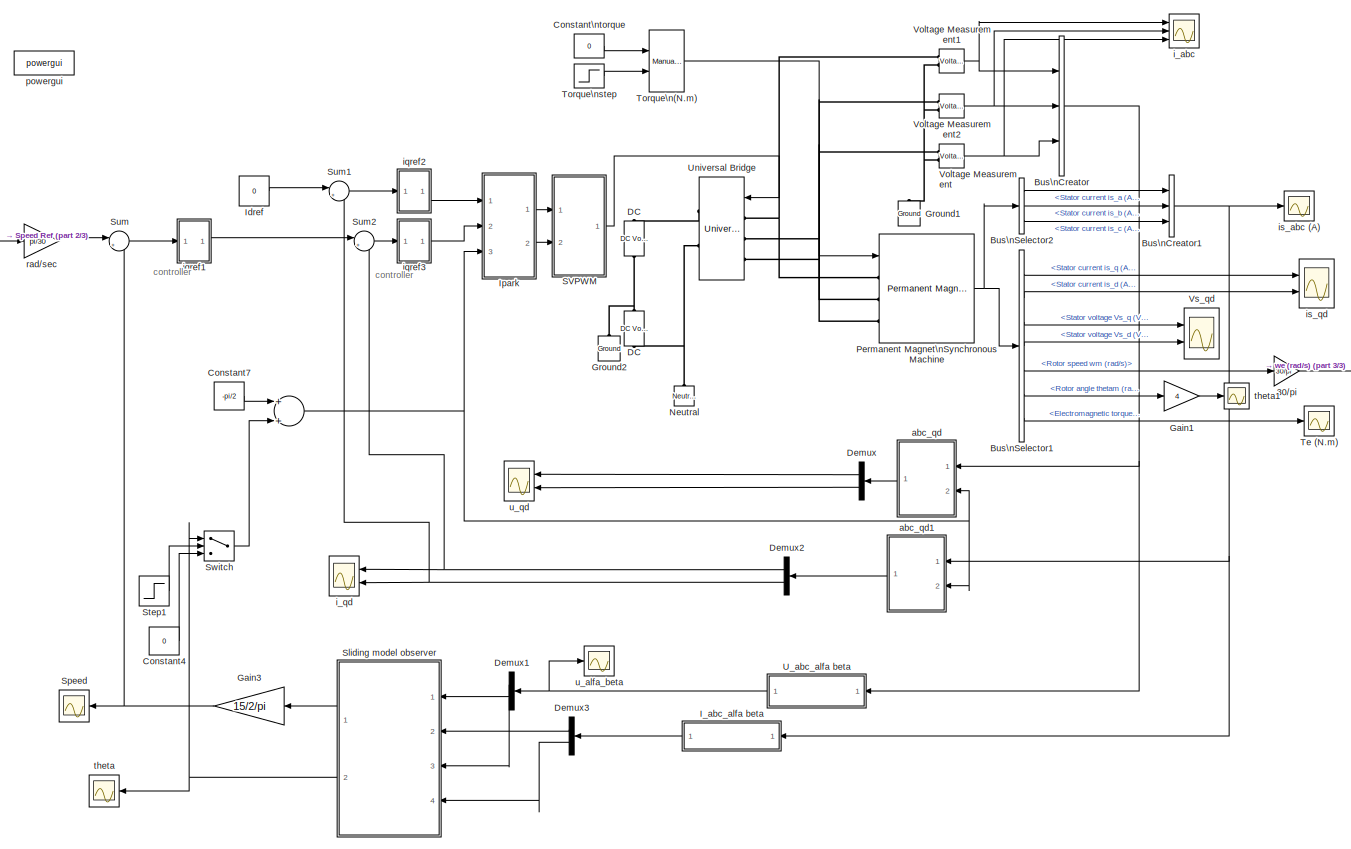
[diagram: root canvas - part 1/3, most of the canvas]
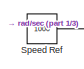
[diagram: root canvas - part 2/3, top left region]
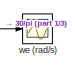
[diagram: root canvas - part 3/3, middle right region]
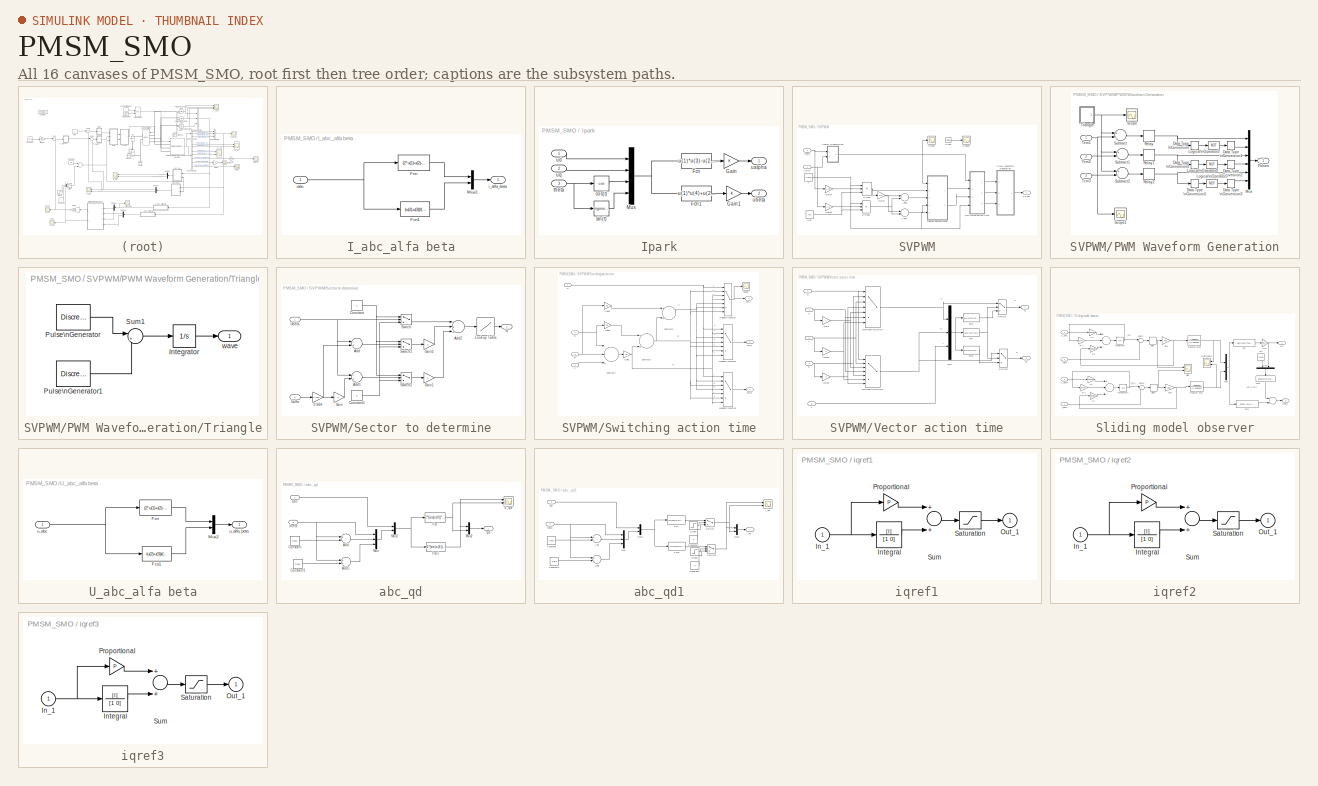
[diagram: thumbnail index - all 16 canvases of the model, root first then tree order]
MODEL PMSM_SMO
KIND model
BLOCK [Sum]   
  InputSameDT = off
  OutDataTypeStr = Inherit: Inherit via internal rule
  Ports = [2, 1]
  SID = 287
  SaturateOnIntegerOverflow = off
BLOCK [Gain] 30//pi
  Gain = 30/pi
  OutDataTypeStr = Inherit: Inherit via internal rule
  ParamDataTypeStr = Inherit: Inherit via internal rule
  SID = 1
  SaturateOnIntegerOverflow = off
BLOCK [BusCreator] Bus\nCreator
  DisplayOption = bar
  InheritFromInputs = on
  Inputs = 3
  Ports = [3, 1]
  SID = 184
BLOCK [BusCreator] Bus\nCreator1
  DisplayOption = bar
  InheritFromInputs = on
  Inputs = 3
  Ports = [3, 1]
  SID = 186
BLOCK [BusSelector] Bus\nSelector1
  OutputAsBus = off
  OutputSignals = Stator current is_q (A),Stator current is_d (A),Stator voltage Vs_q (V),Stator voltage Vs_d (V),Rotor speed wm (rad/s),Rotor angle thetam (rad),Electromagnetic torque Te (N*m)
  Ports = [1, 7]
  SID = 189
BLOCK [BusSelector] Bus\nSelector2
  OutputAsBus = off
  OutputSignals = Stator current is_a (A),Stator current is_b (A),Stator current is_c (A)
  Ports = [1, 3]
  SID = 5
BLOCK [Constant] Constant4
  SID = 281
  Value = 0
BLOCK [Constant] Constant7
  SID = 288
  Value = -pi/2
BLOCK [Constant] Constant\ntorque
  SID = 17
  Value = 0
BLOCK [Reference] DC  REF=powerlib/Electrical\nSources/DC Voltage Source
  Amplitude = 250
  FunctionWithSeparateData = off
  Measurements = None
  Ports = [0, 0, 0, 0, 0, 1, 1]
  RTWMemSecDataConstants = Inherit from model
  RTWMemSecDataInternal = Inherit from model
  RTWMemSecDataParameters = Inherit from model
  RTWMemSecFuncExecute = Inherit from model
  RTWMemSecFuncInitTerm = Inherit from model
  SID = 295
  ShowPortLabels = FromPortIcon
  SourceBlock = powerlib/Electrical\nSources/DC Voltage Source
  SourceProductBaseCode = PS
  SourceProductName = Simscape Electrical
  SourceType = DC Voltage Source
  SystemSampleTime = -1
BLOCK [Reference] DC   REF=powerlib/Electrical\nSources/DC Voltage Source
  Amplitude = 250
  FunctionWithSeparateData = off
  Measurements = None
  Ports = [0, 0, 0, 0, 0, 1, 1]
  RTWMemSecDataConstants = Inherit from model
  RTWMemSecDataInternal = Inherit from model
  RTWMemSecDataParameters = Inherit from model
  RTWMemSecFuncExecute = Inherit from model
  RTWMemSecFuncInitTerm = Inherit from model
  SID = 296
  ShowPortLabels = FromPortIcon
  SourceBlock = powerlib/Electrical\nSources/DC Voltage Source
  SourceProductBaseCode = PS
  SourceProductName = Simscape Electrical
  SourceType = DC Voltage Source
  SystemSampleTime = -1
BLOCK [Demux] Demux
  DisplayOption = bar
  Outputs = 2
  Ports = [1, 2]
  SID = 239
BLOCK [Demux] Demux1
  DisplayOption = bar
  Outputs = 2
  Ports = [1, 2]
  SID = 243
BLOCK [Demux] Demux2
  DisplayOption = bar
  Outputs = 2
  Ports = [1, 2]
  SID = 241
BLOCK [Demux] Demux3
  DisplayOption = bar
  Outputs = 2
  Ports = [1, 2]
  SID = 244
BLOCK [Gain] Gain1
  Gain = 4
  OutDataTypeStr = Inherit: Inherit via internal rule
  ParamDataTypeStr = Inherit: Inherit via internal rule
  SID = 300
  SaturateOnIntegerOverflow = off
BLOCK [Gain] Gain3
  Gain = 15/2/pi
  OutDataTypeStr = Inherit: Inherit via internal rule
  ParamDataTypeStr = Inherit: Inherit via internal rule
  SID = 282
  SaturateOnIntegerOverflow = off
BLOCK [Reference] Ground1  REF=powerlib/Elements/Ground
  LConnTagsString = a
  LeftPortType = p1
  PhysicalDomain = powersysdomain
  Ports = [0, 0, 0, 0, 0, 1]
  RightPortType = p1
  SID = 183
  SourceBlock = powerlib/Elements/Ground
  SourceProductBaseCode = PS
  SourceProductName = Simscape Electrical
  SourceType = Ground
  SubClassName = unknown
BLOCK [Reference] Ground2  REF=powerlib/Elements/Ground
  LConnTagsString = a
  LeftPortType = p1
  PhysicalDomain = powersysdomain
  Ports = [0, 0, 0, 0, 0, 1]
  RightPortType = p1
  SID = 297
  SourceBlock = powerlib/Elements/Ground
  SourceProductBaseCode = PS
  SourceProductName = Simscape Electrical
  SourceType = Ground
  SubClassName = unknown
BLOCK [SubSystem] I_abc_alfa beta
  Ports = [1, 1]
  RequestExecContextInheritance = off
  SID = 227
BLOCK [Fcn] I_abc_alfa beta/Fcn
  Expr = (2*u(1)-u(2)-u(3))/3
  SID = 229
BLOCK [Fcn] I_abc_alfa beta/Fcn1
  Expr = (u(2)-u(3))/(3^(1/2))
  SID = 230
BLOCK [Mux] I_abc_alfa beta/Mux2
  DisplayOption = bar
  Inputs = 2
  Ports = [2, 1]
  SID = 231
BLOCK [Outport] I_abc_alfa beta/i_alfa_beta
  IconDisplay = Port number
  SID = 232
BLOCK [Inport] I_abc_alfa beta/iabc
  IconDisplay = Port number
  SID = 228
BLOCK [Constant] Idref
  SID = 19
  Value = 0
BLOCK [SubSystem] Ipark
  Ports = [3, 2]
  RequestExecContextInheritance = off
  SID = 20
BLOCK [Fcn] Ipark/Fcn
  Expr = u(1)*u(3)-u(2)*u(4)
  SID = 24
BLOCK [Fcn] Ipark/Fcn1
  Expr = u(1)*u(4)+u(2)*u(3)
  SID = 25
BLOCK [Gain] Ipark/Gain
  OutDataTypeStr = Inherit: Inherit via internal rule
  ParamDataTypeStr = Inherit: Inherit via internal rule
  SID = 26
  SaturateOnIntegerOverflow = off
BLOCK [Gain] Ipark/Gain1
  OutDataTypeStr = Inherit: Inherit via internal rule
  ParamDataTypeStr = Inherit: Inherit via internal rule
  SID = 27
  SaturateOnIntegerOverflow = off
BLOCK [Mux] Ipark/Mux
  DisplayOption = bar
  Ports = [4, 1]
  SID = 28
BLOCK [Trigonometry] Ipark/cos(t)
  Operator = cos
  Ports = [1, 1]
  SID = 29
BLOCK [Trigonometry] Ipark/sin(t)
  Ports = [1, 1]
  SID = 30
BLOCK [Inport] Ipark/theta
  IconDisplay = Port number
  Port = 3
  SID = 23
BLOCK [Outport] Ipark/ualpha
  IconDisplay = Port number
  SID = 31
BLOCK [Outport] Ipark/ubeta
  IconDisplay = Port number
  Port = 2
  SID = 32
BLOCK [Inport] Ipark/ud
  IconDisplay = Port number
  SID = 21
BLOCK [Inport] Ipark/uq
  IconDisplay = Port number
  Port = 2
  SID = 22
BLOCK [Reference] Neutral  REF=powerlib/Elements/Neutral
  AttributesFormatString = node %<NodeNumber>
  LConnTagsString = a
  LeftPortType = p1
  NodeNumber = 10
  PhysicalDomain = powersysdomain
  Ports = [0, 0, 0, 0, 0, 1]
  RightPortType = p1
  SID = 298
  SourceBlock = powerlib/Elements/Neutral
  SourceProductBaseCode = PS
  SourceProductName = Simscape Electrical
  SourceType = Neutral
  SubClassName = unknown
BLOCK [Reference] Permanent Magnet\nSynchronous Machine  REF=powerlib/Machines/Permanent Magnet\nSynchronous Machine
  Flat = 120
  Flux = 0.353
  FluxDistribution = Sinusoidal
  FunctionWithSeparateData = off
  Inductance = 8.5e-3
  InitialConditions = [0,0, 0,0]
  MachineConstant = Flux linkage established by magnets (V.s)
  Mechanical = [7.24e-4 0.02e-6 2]
  MechanicalLoad = Torque Tm
  PolePairs = 2
  Ports = [1, 1, 0, 0, 0, 3]
  PresetModel = No
  RTWMemSecDataConstants = Inherit from model
  RTWMemSecDataInternal = Inherit from model
  RTWMemSecDataParameters = Inherit from model
  RTWMemSecFuncExecute = Inherit from model
  RTWMemSecFuncInitTerm = Inherit from model
  Resistance = 1.9
  SID = 46
  ShowDetailedParameters = on
  ShowPortLabels = FromPortIcon
  SourceBlock = powerlib/Machines/Permanent Magnet\nSynchronous Machine
  SourceProductBaseCode = PS
  SourceProductName = Simscape Electrical
  SourceType = Permanent Magnet Synchronous Machine
  SystemSampleTime = -1
  TorqueCst = 1.059
  TsBlock = -1
  TsPowergui = 0
  VoltageCst = 128.0542
  dqInductances = [1e-2 1e-2]
BLOCK [SubSystem] SVPWM
  Ports = [2, 1]
  RequestExecContextInheritance = off
  SID = 47
  TreatAsAtomicUnit = on
BLOCK [Sum] SVPWM/Add3
  InputSameDT = off
  OutDataTypeStr = Inherit: Inherit via internal rule
  Ports = [2, 1]
  SID = 50
  SaturateOnIntegerOverflow = off
BLOCK [Sum] SVPWM/Add4
  InputSameDT = off
  Inputs = +-
  OutDataTypeStr = Inherit: Inherit via internal rule
  Ports = [2, 1]
  SID = 51
  SaturateOnIntegerOverflow = off
BLOCK [Clock] SVPWM/Clock
  SID = 52
BLOCK [Product] SVPWM/Divide
  InputSameDT = off
  Inputs = **/
  OutDataTypeStr = Inherit: Inherit via internal rule
  Ports = [3, 1]
  RndMeth = Floor
  SID = 53
  SaturateOnIntegerOverflow = off
BLOCK [Product] SVPWM/Divide1
  InputSameDT = off
  Inputs = **/
  OutDataTypeStr = Inherit: Inherit via internal rule
  Ports = [3, 1]
  RndMeth = Floor
  SID = 54
  SaturateOnIntegerOverflow = off
BLOCK [Gain] SVPWM/Gain3
  Gain = 0.5
  OutDataTypeStr = Inherit: Inherit via internal rule
  ParamDataTypeStr = Inherit: Inherit via internal rule
  SID = 55
  SaturateOnIntegerOverflow = off
BLOCK [Gain] SVPWM/Gain4
  Gain = 1.732
  OutDataTypeStr = Inherit: Inherit via internal rule
  ParamDataTypeStr = Inherit: Inherit via internal rule
  SID = 56
  SaturateOnIntegerOverflow = off
BLOCK [Gain] SVPWM/Gain5
  Gain = 1.5
  OutDataTypeStr = Inherit: Inherit via internal rule
  ParamDataTypeStr = Inherit: Inherit via internal rule
  SID = 57
  SaturateOnIntegerOverflow = off
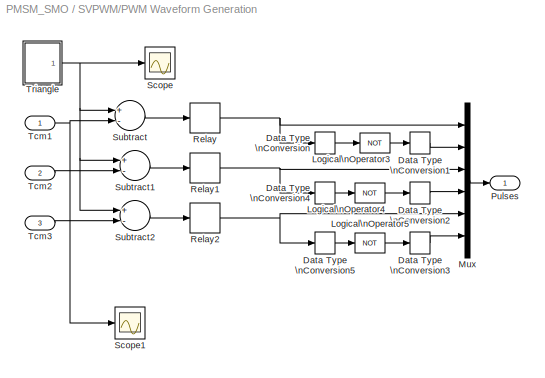
BLOCK [SubSystem] SVPWM/PWM Waveform Generation
  Ports = [3, 1]
  RequestExecContextInheritance = off
  SID = 58
BLOCK [DataTypeConversion] SVPWM/PWM Waveform Generation/Data Type \nConversion
  OutDataTypeStr = boolean
  SID = 62
BLOCK [DataTypeConversion] SVPWM/PWM Waveform Generation/Data Type \nConversion1
  OutDataTypeStr = double
  SID = 63
BLOCK [DataTypeConversion] SVPWM/PWM Waveform Generation/Data Type \nConversion2
  OutDataTypeStr = double
  SID = 64
BLOCK [DataTypeConversion] SVPWM/PWM Waveform Generation/Data Type \nConversion3
  OutDataTypeStr = double
  SID = 65
BLOCK [DataTypeConversion] SVPWM/PWM Waveform Generation/Data Type \nConversion4
  OutDataTypeStr = boolean
  SID = 66
BLOCK [DataTypeConversion] SVPWM/PWM Waveform Generation/Data Type \nConversion5
  OutDataTypeStr = boolean
  SID = 67
BLOCK [Logic] SVPWM/PWM Waveform Generation/Logical\nOperator3
  Operator = NOT
  Ports = [1, 1]
  SID = 68
BLOCK [Logic] SVPWM/PWM Waveform Generation/Logical\nOperator4
  Operator = NOT
  Ports = [1, 1]
  SID = 69
BLOCK [Logic] SVPWM/PWM Waveform Generation/Logical\nOperator5
  Operator = NOT
  Ports = [1, 1]
  SID = 70
BLOCK [Mux] SVPWM/PWM Waveform Generation/Mux
  Inputs = 6
  Ports = [6, 1]
  SID = 71
BLOCK [Outport] SVPWM/PWM Waveform Generation/Pulses
  IconDisplay = Port number
  InitialOutput = 0
  SID = 86
BLOCK [Relay] SVPWM/PWM Waveform Generation/Relay
  SID = 72
BLOCK [Relay] SVPWM/PWM Waveform Generation/Relay1
  SID = 73
BLOCK [Relay] SVPWM/PWM Waveform Generation/Relay2
  SID = 74
BLOCK [Scope] SVPWM/PWM Waveform Generation/Scope
  Floating = off
  NumInputPorts = 1
  Ports = [1]
  SID = 75
  ScopeSpecificationString = C++SS(StrPVP('Location','[1, 52, 1281, 993]'),StrPVP('Open','off'),MxPVP('AxesTitles',54,'struct(''axes1'',''%<SignalLabel>'')'),StrPVP('DataFormat','StructureWithTime'),StrPVP('LimitDataPoints','off'),StrPVP('MaxDataPoints','50000'),StrPVP('BlockParamSampleTime','0'),StrPVP('Decimation','1'),StrPVP('BlockParamSampleInput','off'))
BLOCK [Scope] SVPWM/PWM Waveform Generation/Scope1
  Floating = off
  NumInputPorts = 1
  Ports = [1]
  SID = 76
  ScopeSpecificationString = C++SS(StrPVP('Location','[5, 52, 1285, 993]'),StrPVP('Open','off'),MxPVP('AxesTitles',54,'struct(''axes1'',''%<SignalLabel>'')'),StrPVP('SaveName','ScopeData2'),StrPVP('DataFormat','StructureWithTime'),StrPVP('LimitDataPoints','off'),StrPVP('MaxDataPoints','50000'),StrPVP('BlockParamSampleTime','0'),StrPVP('Decimation','1'),StrPVP('BlockParamSampleInput','off'))
BLOCK [Sum] SVPWM/PWM Waveform Generation/Subtract
  InputSameDT = off
  Inputs = +-
  OutDataTypeStr = Inherit: Inherit via internal rule
  Ports = [2, 1]
  SID = 77
  SaturateOnIntegerOverflow = off
BLOCK [Sum] SVPWM/PWM Waveform Generation/Subtract1
  InputSameDT = off
  Inputs = +-
  OutDataTypeStr = Inherit: Inherit via internal rule
  Ports = [2, 1]
  SID = 78
  SaturateOnIntegerOverflow = off
BLOCK [Sum] SVPWM/PWM Waveform Generation/Subtract2
  InputSameDT = off
  Inputs = +-
  OutDataTypeStr = Inherit: Inherit via internal rule
  Ports = [2, 1]
  SID = 79
  SaturateOnIntegerOverflow = off
BLOCK [Inport] SVPWM/PWM Waveform Generation/Tcm1
  IconDisplay = Port number
  SID = 59
BLOCK [Inport] SVPWM/PWM Waveform Generation/Tcm2
  IconDisplay = Port number
  Port = 2
  SID = 60
BLOCK [Inport] SVPWM/PWM Waveform Generation/Tcm3
  IconDisplay = Port number
  Port = 3
  SID = 61
BLOCK [SubSystem] SVPWM/PWM Waveform Generation/Triangle
  Ports = [0, 1]
  RequestExecContextInheritance = off
  SID = 80
BLOCK [Integrator] SVPWM/PWM Waveform Generation/Triangle/Integrator
  Ports = [1, 1]
  SID = 81
BLOCK [DiscretePulseGenerator] SVPWM/PWM Waveform Generation/Triangle/Pulse\nGenerator
  Period = 0.0002
  Ports = [0, 1]
  PulseType = Time based
  PulseWidth = 50
  SID = 82
BLOCK [DiscretePulseGenerator] SVPWM/PWM Waveform Generation/Triangle/Pulse\nGenerator1
  Period = 0.0002
  PhaseDelay = 0.0001
  Ports = [0, 1]
  PulseType = Time based
  PulseWidth = 50
  SID = 83
BLOCK [Sum] SVPWM/PWM Waveform Generation/Triangle/Sum1
  IconShape = round
  InputSameDT = off
  Inputs = |+-
  OutDataTypeStr = Inherit: Inherit via internal rule
  Ports = [2, 1]
  SID = 84
BLOCK [Outport] SVPWM/PWM Waveform Generation/Triangle/wave
  IconDisplay = Port number
  SID = 85
BLOCK [Outport] SVPWM/Pulses
  IconDisplay = Port number
  SID = 145
BLOCK [Scope] SVPWM/Scope
  Floating = off
  NumInputPorts = 1
  Ports = [1]
  SID = 87
  ScopeSpecificationString = C++SS(StrPVP('Location','[188, 390, 805, 855]'),StrPVP('Open','off'),MxPVP('AxesTitles',54,'struct(''axes1'',''%<SignalLabel>'')'),StrPVP('YMin','2.85'),StrPVP('YMax','3.15'),StrPVP('SaveName','ScopeData1'),StrPVP('DataFormat','StructureWithTime'),StrPVP('LimitDataPoints','off'),StrPVP('MaxDataPoints','50000'),StrPVP('BlockParamSampleTime','0'),StrPVP('Decimation','1'),StrPVP('BlockParamSampleInpu...<+10ch>
BLOCK [Scope] SVPWM/Scope1
  Floating = off
  NumInputPorts = 1
  Ports = [1]
  SID = 88
  ScopeSpecificationString = C++SS(StrPVP('Location','[471, 47, 1088, 512]'),StrPVP('Open','off'),MxPVP('AxesTitles',54,'struct(''axes1'',''%<SignalLabel>'')'),StrPVP('SaveName','ScopeData8'),StrPVP('DataFormat','StructureWithTime'),StrPVP('LimitDataPoints','off'),StrPVP('MaxDataPoints','50000'),StrPVP('BlockParamSampleTime','0'),StrPVP('Decimation','1'),StrPVP('BlockParamSampleInput','off'))
BLOCK [SubSystem] SVPWM/Sector to determine
  Ports = [2, 1]
  RequestExecContextInheritance = off
  SID = 89
BLOCK [Gain] SVPWM/Sector to determine/0.866
  Gain = 1.7321
  OutDataTypeStr = Inherit: Inherit via internal rule
  ParamDataTypeStr = Inherit: Inherit via internal rule
  SID = 92
  SaturateOnIntegerOverflow = off
BLOCK [Sum] SVPWM/Sector to determine/Add
  InputSameDT = off
  Inputs = -+
  OutDataTypeStr = Inherit: Inherit via internal rule
  Ports = [2, 1]
  SID = 93
  SaturateOnIntegerOverflow = off
BLOCK [Sum] SVPWM/Sector to determine/Add1
  InputSameDT = off
  Inputs = -+
  OutDataTypeStr = Inherit: Inherit via internal rule
  Ports = [2, 1]
  SID = 94
  SaturateOnIntegerOverflow = off
BLOCK [Sum] SVPWM/Sector to determine/Add2
  InputSameDT = off
  Inputs = +++
  OutDataTypeStr = Inherit: Inherit via internal rule
  Ports = [3, 1]
  SID = 95
  SaturateOnIntegerOverflow = off
BLOCK [Constant] SVPWM/Sector to determine/Constant
  SID = 96
BLOCK [Constant] SVPWM/Sector to determine/Constant1
  SID = 97
  Value = 0
BLOCK [Gain] SVPWM/Sector to determine/Gain
  Gain = -1
  OutDataTypeStr = Inherit: Inherit via internal rule
  ParamDataTypeStr = Inherit: Inherit via internal rule
  SID = 98
  SaturateOnIntegerOverflow = off
BLOCK [Gain] SVPWM/Sector to determine/Gain1
  Gain = 4
  OutDataTypeStr = Inherit: Inherit via internal rule
  ParamDataTypeStr = Inherit: Inherit via internal rule
  SID = 99
  SaturateOnIntegerOverflow = off
BLOCK [Gain] SVPWM/Sector to determine/Gain2
  Gain = 2
  OutDataTypeStr = Inherit: Inherit via internal rule
  ParamDataTypeStr = Inherit: Inherit via internal rule
  SID = 100
  SaturateOnIntegerOverflow = off
BLOCK [Lookup] SVPWM/Sector to determine/Lookup Table
  InputValues = [1 2 3 4 5 6]
  SID = 101
  SaturateOnIntegerOverflow = off
  Table = [3 1 5 4 6 2]
BLOCK [Outport] SVPWM/Sector to determine/N
  IconDisplay = Port number
  SID = 105
BLOCK [Switch] SVPWM/Sector to determine/Switch
  Criteria = u2 > Threshold
  InputSameDT = off
  SID = 102
  SaturateOnIntegerOverflow = off
BLOCK [Switch] SVPWM/Sector to determine/Switch1
  Criteria = u2 > Threshold
  InputSameDT = off
  SID = 103
  SaturateOnIntegerOverflow = off
BLOCK [Switch] SVPWM/Sector to determine/Switch2
  Criteria = u2 > Threshold
  InputSameDT = off
  SID = 104
  SaturateOnIntegerOverflow = off
BLOCK [Inport] SVPWM/Sector to determine/Ualfa
  IconDisplay = Port number
  Port = 2
  SID = 91
BLOCK [Inport] SVPWM/Sector to determine/Ubeta
  IconDisplay = Port number
  SID = 90
BLOCK [SubSystem] SVPWM/Switching action time
  Ports = [4, 3]
  RequestExecContextInheritance = off
  SID = 106
BLOCK [Gain] SVPWM/Switching action time/Gain1
  Gain = 1/4
  OutDataTypeStr = Inherit: Inherit via internal rule
  ParamDataTypeStr = Inherit: Inherit via internal rule
  SID = 111
  SaturateOnIntegerOverflow = off
BLOCK [Gain] SVPWM/Switching action time/Gain2
  Gain = 0.5
  OutDataTypeStr = Inherit: Inherit via internal rule
  ParamDataTypeStr = Inherit: Inherit via internal rule
  SID = 112
  SaturateOnIntegerOverflow = off
BLOCK [Gain] SVPWM/Switching action time/Gain3
  Gain = 0.5
  OutDataTypeStr = Inherit: Inherit via internal rule
  ParamDataTypeStr = Inherit: Inherit via internal rule
  SID = 113
  SaturateOnIntegerOverflow = off
BLOCK [MultiPortSwitch] SVPWM/Switching action time/Multiport\nSwitch
  InputSameDT = off
  Inputs = 6
  Ports = [7, 1]
  SID = 114
  SaturateOnIntegerOverflow = off
BLOCK [MultiPortSwitch] SVPWM/Switching action time/Multiport\nSwitch1
  InputSameDT = off
  Inputs = 6
  Ports = [7, 1]
  SID = 115
  SaturateOnIntegerOverflow = off
BLOCK [MultiPortSwitch] SVPWM/Switching action time/Multiport\nSwitch2
  InputSameDT = off
  Inputs = 6
  Ports = [7, 1]
  SID = 116
  SaturateOnIntegerOverflow = off
BLOCK [Inport] SVPWM/Switching action time/N
  IconDisplay = Port number
  SID = 107
BLOCK [Scope] SVPWM/Switching action time/Scope
  Floating = off
  NumInputPorts = 1
  Ports = [1]
  SID = 117
  ScopeSpecificationString = C++SS(StrPVP('Location','[462, 455, 1068, 920]'),StrPVP('Open','off'),MxPVP('AxesTitles',54,'struct(''axes1'',''%<SignalLabel>'')'),StrPVP('YMin','4.9875e-005'),StrPVP('YMax','5.025e-005'),StrPVP('SaveToWorkspace','on'),StrPVP('SaveName','Tcm1'),StrPVP('DataFormat','Array'),StrPVP('LimitDataPoints','off'),StrPVP('MaxDataPoints','50000'),StrPVP('BlockParamSampleTime','0'),StrPVP('Decimation','1'),S...<+37ch>
BLOCK [Sum] SVPWM/Switching action time/Subtract1
  InputSameDT = off
  Inputs = --+
  OutDataTypeStr = Inherit: Inherit via internal rule
  Ports = [3, 1]
  SID = 118
  SaturateOnIntegerOverflow = off
BLOCK [Sum] SVPWM/Switching action time/Subtract2
  InputSameDT = off
  OutDataTypeStr = Inherit: Inherit via internal rule
  Ports = [2, 1]
  SID = 119
  SaturateOnIntegerOverflow = off
BLOCK [Sum] SVPWM/Switching action time/Subtract3
  InputSameDT = off
  OutDataTypeStr = Inherit: Inherit via internal rule
  Ports = [2, 1]
  SID = 120
  SaturateOnIntegerOverflow = off
BLOCK [Inport] SVPWM/Switching action time/T
  IconDisplay = Port number
  Port = 4
  SID = 110
BLOCK [Inport] SVPWM/Switching action time/T1
  IconDisplay = Port number
  Port = 2
  SID = 108
BLOCK [Inport] SVPWM/Switching action time/T2
  IconDisplay = Port number
  Port = 3
  SID = 109
BLOCK [Outport] SVPWM/Switching action time/Tcm1
  IconDisplay = Port number
  SID = 121
BLOCK [Outport] SVPWM/Switching action time/Tcm2
  IconDisplay = Port number
  Port = 2
  SID = 122
BLOCK [Outport] SVPWM/Switching action time/Tcm3
  IconDisplay = Port number
  Port = 3
  SID = 123
BLOCK [Constant] SVPWM/T
  SID = 124
  Value = 0.0001
BLOCK [Inport] SVPWM/Ualfa
  IconDisplay = Port number
  SID = 48
BLOCK [Inport] SVPWM/Ubeta
  IconDisplay = Port number
  Port = 2
  SID = 49
BLOCK [Constant] SVPWM/Udc
  SID = 125
  Value = 310
BLOCK [SubSystem] SVPWM/Vector action time
  Ports = [5, 2]
  RequestExecContextInheritance = off
  SID = 126
  TreatAsAtomicUnit = on
BLOCK [Fcn] SVPWM/Vector action time/Fcn
  Expr = u(3)-u(2)-u(1)
  SID = 132
BLOCK [Fcn] SVPWM/Vector action time/Fcn1
  Expr = u(1)*u(3)/(u(1)+u(2))
  SID = 133
BLOCK [Fcn] SVPWM/Vector action time/Fcn2
  Expr = u(2)*u(3)/(u(1)+u(2))
  SID = 134
BLOCK [Gain] SVPWM/Vector action time/Gain
  Gain = -1
  OutDataTypeStr = Inherit: Inherit via internal rule
  ParamDataTypeStr = Inherit: Inherit via internal rule
  SID = 135
  SaturateOnIntegerOverflow = off
BLOCK [Gain] SVPWM/Vector action time/Gain1
  Gain = -1
  OutDataTypeStr = Inherit: Inherit via internal rule
  ParamDataTypeStr = Inherit: Inherit via internal rule
  SID = 136
  SaturateOnIntegerOverflow = off
BLOCK [Gain] SVPWM/Vector action time/Gain2
  Gain = -1
  OutDataTypeStr = Inherit: Inherit via internal rule
  ParamDataTypeStr = Inherit: Inherit via internal rule
  SID = 137
  SaturateOnIntegerOverflow = off
BLOCK [MultiPortSwitch] SVPWM/Vector action time/Multiport\nSwitch
  InputSameDT = off
  Inputs = 6
  Ports = [7, 1]
  SID = 138
  SaturateOnIntegerOverflow = off
BLOCK [MultiPortSwitch] SVPWM/Vector action time/Multiport\nSwitch1
  InputSameDT = off
  Inputs = 6
  Ports = [7, 1]
  SID = 139
  SaturateOnIntegerOverflow = off
BLOCK [Mux] SVPWM/Vector action time/Mux
  DisplayOption = bar
  Inputs = 3
  Ports = [3, 1]
  SID = 140
BLOCK [Inport] SVPWM/Vector action time/N
  IconDisplay = Port number
  SID = 127
BLOCK [Switch] SVPWM/Vector action time/Switch
  InputSameDT = off
  SID = 141
  SaturateOnIntegerOverflow = off
BLOCK [Switch] SVPWM/Vector action time/Switch1
  Criteria = u2 > Threshold
  InputSameDT = off
  SID = 142
  SaturateOnIntegerOverflow = off
BLOCK [Inport] SVPWM/Vector action time/T
  IconDisplay = Port number
  Port = 5
  SID = 131
BLOCK [Outport] SVPWM/Vector action time/T1
  IconDisplay = Port number
  SID = 143
BLOCK [Outport] SVPWM/Vector action time/T2
  IconDisplay = Port number
  Port = 2
  SID = 144
BLOCK [Inport] SVPWM/Vector action time/X
  IconDisplay = Port number
  Port = 2
  SID = 128
BLOCK [Inport] SVPWM/Vector action time/Y
  IconDisplay = Port number
  Port = 3
  SID = 129
BLOCK [Inport] SVPWM/Vector action time/Z
  IconDisplay = Port number
  Port = 4
  SID = 130
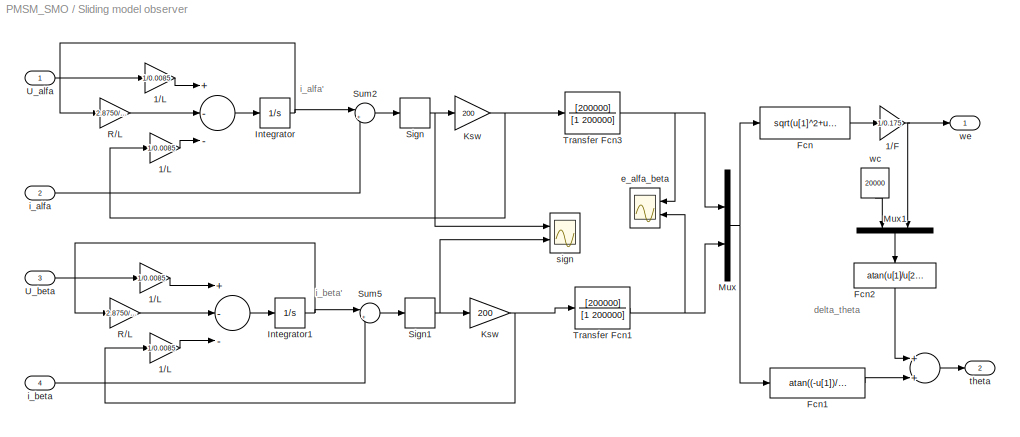
BLOCK [SubSystem] Sliding model observer
  Ports = [4, 2]
  RequestExecContextInheritance = off
  SID = 245
BLOCK [Sum] Sliding model observer/ 
  InputSameDT = off
  Inputs = +--
  OutDataTypeStr = Inherit: Inherit via internal rule
  Ports = [3, 1]
  SID = 250
  SaturateOnIntegerOverflow = off
BLOCK [Sum] Sliding model observer/  
  InputSameDT = off
  OutDataTypeStr = Inherit: Inherit via internal rule
  Ports = [2, 1]
  SID = 251
  SaturateOnIntegerOverflow = off
BLOCK [Sum] Sliding model observer/   
  InputSameDT = off
  Inputs = +--
  OutDataTypeStr = Inherit: Inherit via internal rule
  Ports = [3, 1]
  SID = 252
  SaturateOnIntegerOverflow = off
BLOCK [Gain] Sliding model observer/ 1//L
  Gain = 1/0.0085
  OutDataTypeStr = Inherit: Inherit via internal rule
  ParamDataTypeStr = Inherit: Inherit via internal rule
  SID = 253
  SaturateOnIntegerOverflow = off
BLOCK [Gain] Sliding model observer/ 1//L 
  Gain = 1/0.0085
  OutDataTypeStr = Inherit: Inherit via internal rule
  ParamDataTypeStr = Inherit: Inherit via internal rule
  SID = 254
  SaturateOnIntegerOverflow = off
BLOCK [Gain] Sliding model observer/1//F
  Gain = 1/0.175
  OutDataTypeStr = Inherit: Inherit via internal rule
  ParamDataTypeStr = Inherit: Inherit via internal rule
  SID = 255
  SaturateOnIntegerOverflow = off
BLOCK [Gain] Sliding model observer/1//L
  Gain = 1/0.0085
  OutDataTypeStr = Inherit: Inherit via internal rule
  ParamDataTypeStr = Inherit: Inherit via internal rule
  SID = 256
  SaturateOnIntegerOverflow = off
BLOCK [Gain] Sliding model observer/1//L 
  Gain = 1/0.0085
  OutDataTypeStr = Inherit: Inherit via internal rule
  ParamDataTypeStr = Inherit: Inherit via internal rule
  SID = 257
  SaturateOnIntegerOverflow = off
BLOCK [Fcn] Sliding model observer/Fcn
  Expr = sqrt(u[1]^2+u[2]^2)
  SID = 258
BLOCK [Fcn] Sliding model observer/Fcn1
  Expr = atan((-u[1])/u[2])+(-u[2]+abs(u[2]))*pi/2/abs(u[2])
  SID = 259
BLOCK [Fcn] Sliding model observer/Fcn2
  Expr = atan(u[1]/u[2])
  SID = 260
BLOCK [Integrator] Sliding model observer/Integrator
  Ports = [1, 1]
  SID = 261
BLOCK [Integrator] Sliding model observer/Integrator1
  Ports = [1, 1]
  SID = 262
BLOCK [Gain] Sliding model observer/Ksw
  Gain = 200
  OutDataTypeStr = Inherit: Inherit via internal rule
  ParamDataTypeStr = Inherit: Inherit via internal rule
  SID = 263
  SaturateOnIntegerOverflow = off
BLOCK [Gain] Sliding model observer/Ksw 
  Gain = 200
  OutDataTypeStr = Inherit: Inherit via internal rule
  ParamDataTypeStr = Inherit: Inherit via internal rule
  SID = 264
  SaturateOnIntegerOverflow = off
BLOCK [Mux] Sliding model observer/Mux
  DisplayOption = bar
  Inputs = 2
  Ports = [2, 1]
  SID = 265
BLOCK [Mux] Sliding model observer/Mux1
  DisplayOption = bar
  Inputs = 2
  Ports = [2, 1]
  SID = 266
BLOCK [Gain] Sliding model observer/R//L
  Gain = 2.8750/0.0085
  OutDataTypeStr = Inherit: Inherit via internal rule
  ParamDataTypeStr = Inherit: Inherit via internal rule
  SID = 267
  SaturateOnIntegerOverflow = off
BLOCK [Gain] Sliding model observer/R//L 
  Gain = 2.8750/0.0085
  OutDataTypeStr = Inherit: Inherit via internal rule
  ParamDataTypeStr = Inherit: Inherit via internal rule
  SID = 268
  SaturateOnIntegerOverflow = off
BLOCK [Signum] Sliding model observer/Sign
  SID = 269
  ZeroCross = off
BLOCK [Signum] Sliding model observer/Sign1
  SID = 270
  ZeroCross = off
BLOCK [Sum] Sliding model observer/Sum2
  IconShape = round
  InputSameDT = off
  Inputs = |+-
  OutDataTypeStr = Inherit: Inherit via internal rule
  Ports = [2, 1]
  SID = 271
  SaturateOnIntegerOverflow = off
BLOCK [Sum] Sliding model observer/Sum5
  IconShape = round
  InputSameDT = off
  Inputs = |+-
  OutDataTypeStr = Inherit: Inherit via internal rule
  Ports = [2, 1]
  SID = 272
  SaturateOnIntegerOverflow = off
BLOCK [TransferFcn] Sliding model observer/Transfer Fcn1
  Denominator = [1 200000]
  Numerator = [200000]
  SID = 273
BLOCK [TransferFcn] Sliding model observer/Transfer Fcn3
  Denominator = [1 200000]
  Numerator = [200000]
  SID = 274
BLOCK [Inport] Sliding model observer/U_alfa
  IconDisplay = Port number
  SID = 246
BLOCK [Inport] Sliding model observer/U_beta
  IconDisplay = Port number
  Port = 3
  SID = 248
BLOCK [Scope] Sliding model observer/e_alfa_beta
  Floating = off
  NumInputPorts = 2
  Ports = [2]
  SID = 275
  ScopeSpecificationString = C++SS(StrPVP('Location','[1, 52, 1017, 729]'),StrPVP('Open','off'),StrPVP('ZoomMode','xonly'),MxPVP('AxesTitles',54,'struct(''axes1'',''%<SignalLabel>'',''axes2'',''%<SignalLabel>'')'),StrPVP('TimeRange','0.06'),StrPVP('YMin','-5~-125'),StrPVP('YMax','95~-40'),StrPVP('SaveName','ScopeData14'),StrPVP('DataFormat','Structure'),StrPVP('LimitDataPoints','off'),StrPVP('BlockParamSampleTime','0'),StrPVP...<+57ch>
BLOCK [Inport] Sliding model observer/i_alfa
  IconDisplay = Port number
  Port = 2
  SID = 247
BLOCK [Inport] Sliding model observer/i_beta
  IconDisplay = Port number
  Port = 4
  SID = 249
BLOCK [Scope] Sliding model observer/sign
  Floating = off
  NumInputPorts = 2
  Ports = [2]
  SID = 276
  ScopeSpecificationString = C++SS(StrPVP('Location','[9, 290, 578, 729]'),StrPVP('Open','off'),StrPVP('ZoomMode','xonly'),MxPVP('AxesTitles',54,'struct(''axes1'',''%<SignalLabel>'',''axes2'',''%<SignalLabel>'')'),StrPVP('TimeRange','0.06'),StrPVP('YMin','-1~-1'),StrPVP('YMax','1~1'),StrPVP('SaveName','ScopeData16'),StrPVP('DataFormat','Structure'),StrPVP('LimitDataPoints','off'),StrPVP('BlockParamSampleTime','0'),StrPVP('Dec...<+52ch>
BLOCK [Outport] Sliding model observer/theta
  IconDisplay = Port number
  Port = 2
  SID = 279
BLOCK [Constant] Sliding model observer/wc
  SID = 277
  Value = 20000
BLOCK [Outport] Sliding model observer/we
  IconDisplay = Port number
  SID = 278
BLOCK [Scope] Speed
  Floating = off
  NumInputPorts = 1
  Ports = [1]
  SID = 284
  ScopeSpecificationString = C++SS(StrPVP('Location','[6, 52, 1022, 729]'),StrPVP('Open','off'),StrPVP('ZoomMode','yonly'),MxPVP('AxesTitles',54,'struct(''axes1'',''%<SignalLabel>'')'),StrPVP('YMin','103.6'),StrPVP('YMax','105.9'),StrPVP('SaveName','ScopeData17'),StrPVP('DataFormat','StructureWithTime'),StrPVP('LimitDataPoints','off'),StrPVP('BlockParamSampleTime','0'),StrPVP('Decimation','1'),StrPVP('BlockParamSampleInput','...<+6ch>
BLOCK [Constant] Speed Ref
  SID = 146
  Value = 1000
BLOCK [Step] Step1
  SID = 285
  SampleTime = 0
  Time = 0.001
BLOCK [Sum] Sum
  IconShape = round
  InputSameDT = off
  Inputs = |+-
  OutDataTypeStr = Inherit: Inherit via internal rule
  Ports = [2, 1]
  SID = 147
  SaturateOnIntegerOverflow = off
BLOCK [Sum] Sum1
  IconShape = round
  InputSameDT = off
  Inputs = |+-
  OutDataTypeStr = Inherit: Inherit via internal rule
  Ports = [2, 1]
  SID = 148
  SaturateOnIntegerOverflow = off
BLOCK [Sum] Sum2
  IconShape = round
  InputSameDT = off
  Inputs = |+-
  OutDataTypeStr = Inherit: Inherit via internal rule
  Ports = [2, 1]
  SID = 149
  SaturateOnIntegerOverflow = off
BLOCK [Switch] Switch
  InputSameDT = off
  SID = 286
  SaturateOnIntegerOverflow = off
  Threshold = 1
BLOCK [Scope] Te (N.m)
  Floating = off
  NumInputPorts = 1
  Ports = [1]
  SID = 151
  ScopeSpecificationString = C++SS(StrPVP('Location','[5, 52, 1285, 737]'),StrPVP('Open','off'),MxPVP('AxesTitles',54,'struct(''axes1'',''%<SignalLabel>'')'),StrPVP('TimeRange','0.06'),StrPVP('YMin','-1'),StrPVP('YMax','0.9'),StrPVP('SaveName','ScopeData4'),StrPVP('DataFormat','Structure'),StrPVP('LimitDataPoints','off'),StrPVP('BlockParamSampleTime','0'),StrPVP('Decimation','1'),StrPVP('BlockParamSampleInput','off'))
BLOCK [Reference] Torque\n(N.m)  REF=simulink/Signal\nRouting/Manual Switch
  FunctionWithSeparateData = off
  Ports = [2, 1]
  RTWMemSecDataConstants = Inherit from model
  RTWMemSecDataInternal = Inherit from model
  RTWMemSecDataParameters = Inherit from model
  RTWMemSecFuncExecute = Inherit from model
  RTWMemSecFuncInitTerm = Inherit from model
  SID = 152
  ShowPortLabels = FromPortIcon
  SourceBlock = simulink/Signal\nRouting/Manual Switch
  SourceProductBaseCode = SL
  SourceProductName = Simulink
  SourceType = Manual Switch
  SystemSampleTime = -1
  action = 0
  sw = 0
  varsize = off
BLOCK [Step] Torque\nstep
  After = 4
  SID = 153
  SampleTime = 0
  Time = 0
BLOCK [SubSystem] U_abc_alfa beta
  Ports = [1, 1]
  RequestExecContextInheritance = off
  SID = 233
BLOCK [Fcn] U_abc_alfa beta/Fcn
  Expr = (2*u(1)-u(2)-u(3))/3
  SID = 235
BLOCK [Fcn] U_abc_alfa beta/Fcn1
  Expr = (u(2)-u(3))/(3^(1/2))
  SID = 236
BLOCK [Mux] U_abc_alfa beta/Mux2
  DisplayOption = bar
  Inputs = 2
  Ports = [2, 1]
  SID = 237
BLOCK [Inport] U_abc_alfa beta/u_abc
  IconDisplay = Port number
  SID = 234
BLOCK [Outport] U_abc_alfa beta/u_alfa_beta
  IconDisplay = Port number
  SID = 238
BLOCK [Reference] Universal Bridge  REF=powerlib/Power\nElectronics/Universal Bridge
  Arms = 3
  Device = IGBT / Diodes
  ForwardVoltage = 0
  ForwardVoltages = [  0  0  ]
  FunctionWithSeparateData = off
  GTOparameters = [ 10e-6 , 20e-6 ]
  IGBTparameters = [ 1e-6 , 2e-6 ]
  Lon = 0
  Measurements = None
  Measurements_2 = None
  Ports = [1, 0, 0, 0, 0, 3, 2]
  RTWMemSecDataConstants = Inherit from model
  RTWMemSecDataInternal = Inherit from model
  RTWMemSecDataParameters = Inherit from model
  RTWMemSecFuncExecute = Inherit from model
  RTWMemSecFuncInitTerm = Inherit from model
  Ron = 1e-3
  SID = 299
  ShowPortLabels = FromPortIcon
  SnubberCapacitance = inf
  SnubberResistance = 1e5
  SourceBlock = powerlib/Power\nElectronics/Universal Bridge
  SourceProductBaseCode = PS
  SourceProductName = Simscape Electrical
  SourceType = Universal Bridge
  SystemSampleTime = -1
  converterType = Rectifier
BLOCK [Reference] Voltage Measurement  REF=powerlib/Measurements/Voltage Measurement
  FunctionWithSeparateData = off
  OutputType = Complex
  PSBequivalent = 0
  PhasorSimulation = off
  Ports = [0, 1, 0, 0, 0, 2]
  RTWMemSecDataConstants = Inherit from model
  RTWMemSecDataInternal = Inherit from model
  RTWMemSecDataParameters = Inherit from model
  RTWMemSecFuncExecute = Inherit from model
  RTWMemSecFuncInitTerm = Inherit from model
  SID = 182
  ShowPortLabels = FromPortIcon
  SourceBlock = powerlib/Measurements/Voltage Measurement
  SourceProductBaseCode = PS
  SourceProductName = Simscape Electrical
  SourceType = Voltage Measurement
  SystemSampleTime = -1
BLOCK [Reference] Voltage Measurement1  REF=powerlib/Measurements/Voltage Measurement
  FunctionWithSeparateData = off
  OutputType = Complex
  PSBequivalent = 0
  PhasorSimulation = off
  Ports = [0, 1, 0, 0, 0, 2]
  RTWMemSecDataConstants = Inherit from model
  RTWMemSecDataInternal = Inherit from model
  RTWMemSecDataParameters = Inherit from model
  RTWMemSecFuncExecute = Inherit from model
  RTWMemSecFuncInitTerm = Inherit from model
  SID = 180
  ShowPortLabels = FromPortIcon
  SourceBlock = powerlib/Measurements/Voltage Measurement
  SourceProductBaseCode = PS
  SourceProductName = Simscape Electrical
  SourceType = Voltage Measurement
  SystemSampleTime = -1
BLOCK [Reference] Voltage Measurement2  REF=powerlib/Measurements/Voltage Measurement
  FunctionWithSeparateData = off
  OutputType = Complex
  PSBequivalent = 0
  PhasorSimulation = off
  Ports = [0, 1, 0, 0, 0, 2]
  RTWMemSecDataConstants = Inherit from model
  RTWMemSecDataInternal = Inherit from model
  RTWMemSecDataParameters = Inherit from model
  RTWMemSecFuncExecute = Inherit from model
  RTWMemSecFuncInitTerm = Inherit from model
  SID = 181
  ShowPortLabels = FromPortIcon
  SourceBlock = powerlib/Measurements/Voltage Measurement
  SourceProductBaseCode = PS
  SourceProductName = Simscape Electrical
  SourceType = Voltage Measurement
  SystemSampleTime = -1
BLOCK [Scope] Vs_qd
  Floating = off
  NumInputPorts = 2
  Ports = [2]
  SID = 191
  ScopeSpecificationString = C++SS(StrPVP('Location','[266, 58, 832, 513]'),StrPVP('Open','off'),StrPVP('ZoomMode','xonly'),MxPVP('AxesTitles',54,'struct(''axes1'',''%<SignalLabel>'',''axes2'',''%<SignalLabel>'')'),StrPVP('TimeRange','0.2'),StrPVP('YMin','-25~-400'),StrPVP('YMax','400~300'),StrPVP('SaveName','ScopeData9'),StrPVP('DataFormat','StructureWithTime'),StrPVP('LimitDataPoints','off'),StrPVP('BlockParamSampleTime','0...<+66ch>
BLOCK [SubSystem] abc_qd
  Ports = [2, 1]
  RequestExecContextInheritance = off
  SID = 193
BLOCK [Sum] abc_qd/Add
  InputSameDT = off
  Inputs = +-
  OutDataTypeStr = Inherit: Inherit via internal rule
  Ports = [2, 1]
  SID = 196
  SaturateOnIntegerOverflow = off
BLOCK [Sum] abc_qd/Add1
  InputSameDT = off
  OutDataTypeStr = Inherit: Inherit via internal rule
  Ports = [2, 1]
  SID = 197
  SaturateOnIntegerOverflow = off
BLOCK [Constant] abc_qd/Constant
  SID = 198
  Value = 2*pi/3
BLOCK [Constant] abc_qd/Constant1
  SID = 199
  Value = 2*pi/3
BLOCK [Fcn] abc_qd/Fcn
  Expr = 2*(cos(u(4))*u(1)+cos(u(5))*u(2)+cos(u(6))*u(3))/3
  SID = 200
BLOCK [Fcn] abc_qd/Fcn1
  Expr = -2*(sin(u(4))*u(1)+sin(u(5))*u(2)+sin(u(6))*u(3))/3
  SID = 201
BLOCK [Mux] abc_qd/Mux
  DisplayOption = bar
  Inputs = 3
  Ports = [3, 1]
  SID = 202
BLOCK [Mux] abc_qd/Mux1
  DisplayOption = bar
  Inputs = 2
  Ports = [2, 1]
  SID = 203
BLOCK [Mux] abc_qd/Mux2
  DisplayOption = bar
  Inputs = 2
  Ports = [2, 1]
  SID = 204
BLOCK [Inport] abc_qd/abc
  IconDisplay = Port number
  SID = 194
BLOCK [Outport] abc_qd/qd
  IconDisplay = Port number
  SID = 206
BLOCK [Inport] abc_qd/theta
  IconDisplay = Port number
  Port = 2
  SID = 195
BLOCK [Scope] abc_qd/u_qd 
  Floating = off
  NumInputPorts = 2
  Ports = [2]
  SID = 205
  ScopeSpecificationString = C++SS(StrPVP('Location','[6, 345, 1022, 784]'),StrPVP('Open','off'),StrPVP('ZoomMode','yonly'),MxPVP('AxesTitles',54,'struct(''axes1'',''%<SignalLabel>'',''axes2'',''%<SignalLabel>'')'),StrPVP('TimeRange','0.06'),StrPVP('YMin','-25~-300'),StrPVP('YMax','300~250'),StrPVP('SaveName','ScopeData24'),StrPVP('DataFormat','Structure'),StrPVP('LimitDataPoints','off'),StrPVP('BlockParamSampleTime','0'),Str...<+60ch>
BLOCK [SubSystem] abc_qd1
  Ports = [2, 1]
  RequestExecContextInheritance = off
  SID = 207
BLOCK [Sum] abc_qd1/Add
  InputSameDT = off
  Inputs = +-
  OutDataTypeStr = Inherit: Inherit via internal rule
  Ports = [2, 1]
  SID = 210
  SaturateOnIntegerOverflow = off
BLOCK [Sum] abc_qd1/Add1
  InputSameDT = off
  OutDataTypeStr = Inherit: Inherit via internal rule
  Ports = [2, 1]
  SID = 211
  SaturateOnIntegerOverflow = off
BLOCK [Constant] abc_qd1/Constant
  SID = 212
  Value = 2*pi/3
BLOCK [Constant] abc_qd1/Constant1
  SID = 213
  Value = 2*pi/3
BLOCK [Constant] abc_qd1/Constant2
  SID = 214
  Value = 0
BLOCK [Constant] abc_qd1/Constant7
  SID = 215
  Value = 0
BLOCK [Fcn] abc_qd1/Fcn
  Expr = 2*(cos(u(4))*u(1)+cos(u(5))*u(2)+cos(u(6))*u(3))/3
  SID = 216
BLOCK [Fcn] abc_qd1/Fcn1
  Expr = -2*(sin(u(4))*u(1)+sin(u(5))*u(2)+sin(u(6))*u(3))/3
  SID = 217
BLOCK [Mux] abc_qd1/Mux
  DisplayOption = bar
  Inputs = 3
  Ports = [3, 1]
  SID = 218
BLOCK [Mux] abc_qd1/Mux1
  DisplayOption = bar
  Inputs = 2
  Ports = [2, 1]
  SID = 219
BLOCK [Mux] abc_qd1/Mux2
  DisplayOption = bar
  Inputs = 2
  Ports = [2, 1]
  SID = 220
BLOCK [Step] abc_qd1/Step1
  SID = 221
  SampleTime = 0
  Time = 0.0001
BLOCK [Step] abc_qd1/Step2
  SID = 222
  SampleTime = 0
  Time = 0.0001
BLOCK [Switch] abc_qd1/Switch
  InputSameDT = off
  SID = 223
  SaturateOnIntegerOverflow = off
  Threshold = 1
BLOCK [Switch] abc_qd1/Switch1
  InputSameDT = off
  SID = 224
  SaturateOnIntegerOverflow = off
  Threshold = 1
BLOCK [Inport] abc_qd1/abc
  IconDisplay = Port number
  SID = 208
BLOCK [Scope] abc_qd1/i_qd 
  Floating = off
  NumInputPorts = 2
  Ports = [2]
  SID = 225
  ScopeSpecificationString = C++SS(StrPVP('Location','[5, 211, 1021, 762]'),StrPVP('Open','off'),StrPVP('ZoomMode','yonly'),MxPVP('AxesTitles',54,'struct(''axes1'',''%<SignalLabel>'',''axes2'',''%<SignalLabel>'')'),StrPVP('TimeRange','0.06'),StrPVP('YMin','-1~-4.25'),StrPVP('YMax','2.5~-1'),StrPVP('SaveName','ScopeData25'),StrPVP('DataFormat','Structure'),StrPVP('LimitDataPoints','off'),StrPVP('BlockParamSampleTime','0'),StrP...<+59ch>
BLOCK [Outport] abc_qd1/qd
  IconDisplay = Port number
  SID = 226
BLOCK [Inport] abc_qd1/theta
  IconDisplay = Port number
  Port = 2
  SID = 209
BLOCK [Scope] i_abc
  Floating = off
  NumInputPorts = 3
  Ports = [3]
  SID = 185
  ScopeSpecificationString = C++SS(StrPVP('Location','[5, 156, 1029, 758]'),StrPVP('Open','off'),StrPVP('ZoomMode','xonly'),MxPVP('AxesTitles',54,'struct(''axes1'',''%<SignalLabel>'',''axes2'',''%<SignalLabel>'',''axes3'',''%<SignalLabel>'')'),StrPVP('TimeRange','0.2'),StrPVP('YMin','-250~-250~-250'),StrPVP('YMax','250~250~250'),StrPVP('SaveToWorkspace','on'),StrPVP('SaveName','ScopeData3'),StrPVP('DataFormat','Structure'),St...<+128ch>
BLOCK [Scope] i_qd 
  Floating = off
  NumInputPorts = 2
  Ports = [2]
  SID = 242
  ScopeSpecificationString = C++SS(StrPVP('Location','[5, 48, 1029, 733]'),StrPVP('Open','off'),StrPVP('ZoomMode','yonly'),MxPVP('AxesTitles',54,'struct(''axes1'',''%<SignalLabel>'',''axes2'',''%<SignalLabel>'')'),StrPVP('TimeRange','0.06'),StrPVP('YMin','-0.15~-0.09'),StrPVP('YMax','0.15~0.06'),StrPVP('SaveName','ScopeData12'),StrPVP('DataFormat','Structure'),StrPVP('LimitDataPoints','off'),StrPVP('BlockParamSampleTime','0')...<+64ch>
BLOCK [SubSystem] iqref1
  Ports = [1, 1]
  RequestExecContextInheritance = off
  SID = 156
BLOCK [Inport] iqref1/In_1
  IconDisplay = Port number
  SID = 157
BLOCK [TransferFcn] iqref1/Integral
  Denominator = [1 0]
  Numerator = [I]
  SID = 158
BLOCK [Outport] iqref1/Out_1
  IconDisplay = Port number
  InitialOutput = 0
  SID = 162
BLOCK [Gain] iqref1/Proportional
  Gain = P
  SID = 159
BLOCK [Saturate] iqref1/Saturation
  InputPortMap = u0
  LowerLimit = min
  Ports = [1, 1]
  SID = 160
  UpperLimit = max
BLOCK [Sum] iqref1/Sum
  Ports = [2, 1]
  SID = 161
BLOCK [SubSystem] iqref2
  Ports = [1, 1]
  RequestExecContextInheritance = off
  SID = 163
BLOCK [Inport] iqref2/In_1
  IconDisplay = Port number
  SID = 164
BLOCK [TransferFcn] iqref2/Integral
  Denominator = [1 0]
  Numerator = [I]
  SID = 165
BLOCK [Outport] iqref2/Out_1
  IconDisplay = Port number
  InitialOutput = 0
  SID = 169
BLOCK [Gain] iqref2/Proportional
  Gain = P
  SID = 166
BLOCK [Saturate] iqref2/Saturation
  InputPortMap = u0
  LowerLimit = min
  Ports = [1, 1]
  SID = 167
  UpperLimit = max
BLOCK [Sum] iqref2/Sum
  Ports = [2, 1]
  SID = 168
BLOCK [SubSystem] iqref3
  Ports = [1, 1]
  RequestExecContextInheritance = off
  SID = 170
BLOCK [Inport] iqref3/In_1
  IconDisplay = Port number
  SID = 171
BLOCK [TransferFcn] iqref3/Integral
  Denominator = [1 0]
  Numerator = [I]
  SID = 172
BLOCK [Outport] iqref3/Out_1
  IconDisplay = Port number
  InitialOutput = 0
  SID = 176
BLOCK [Gain] iqref3/Proportional
  Gain = P
  SID = 173
BLOCK [Saturate] iqref3/Saturation
  InputPortMap = u0
  LowerLimit = min
  Ports = [1, 1]
  SID = 174
  UpperLimit = max
BLOCK [Sum] iqref3/Sum
  Ports = [2, 1]
  SID = 175
BLOCK [Scope] is_abc (A)
  Floating = off
  NumInputPorts = 1
  Ports = [1]
  SID = 177
  ScopeSpecificationString = C++SS(StrPVP('Location','[5, 52, 1285, 993]'),StrPVP('Open','off'),MxPVP('AxesTitles',54,'struct(''axes1'',''%<SignalLabel>'')'),StrPVP('TimeRange','0.06'),StrPVP('YMin','-30'),StrPVP('YMax','35'),StrPVP('SaveName','ScopeData7'),StrPVP('DataFormat','Structure'),StrPVP('LimitDataPoints','off'),StrPVP('BlockParamSampleTime','0'),StrPVP('Decimation','1'),StrPVP('BlockParamSampleInput','off'))
BLOCK [Scope] is_qd
  Floating = off
  NumInputPorts = 2
  Ports = [2]
  SID = 190
  ScopeSpecificationString = C++SS(StrPVP('Location','[-3, 48, 1021, 733]'),StrPVP('Open','off'),StrPVP('ZoomMode','yonly'),MxPVP('AxesTitles',54,'struct(''axes1'',''%<SignalLabel>'',''axes2'',''%<SignalLabel>'')'),StrPVP('TimeRange','0.2'),StrPVP('YMin','1.7~-0.23'),StrPVP('YMax','2.1~-0.04'),StrPVP('SaveName','ScopeData6'),StrPVP('DataFormat','StructureWithTime'),StrPVP('LimitDataPoints','off'),StrPVP('BlockParamSampleTime'...<+69ch>
BLOCK [Reference] powergui  REF=powerlib/powergui
  DisableRonSwitches = off
  DisableSnubberDevices = off
  DisableVfSwitches = off
  DisplayEquations = off
  DisplayStyle = 1
  EnableUseOfTLC = off
  Frange = [0:2:500]
  FreqAxis = off
  FunctionMessages = off
  FunctionWithSeparateData = off
  HookPort = off
  Interpol = off
  MaxFrequency = 1000
  Ports = []
  RTWMemSecDataConstants = Inherit from model
  RTWMemSecDataInternal = Inherit from model
  RTWMemSecDataParameters = Inherit from model
  RTWMemSecFuncExecute = Inherit from model
  RTWMemSecFuncInitTerm = Inherit from model
  ResistiveCurrentMeasurement = off
  RestoreLinks = warning
  RmsSteady = 1
  SID = 178
  SPID = off
  SampleTime = 50e-6
  ShowGrid = off
  ShowPortLabels = FromPortIcon
  SourceBlock = powerlib/powergui
  SourceProductBaseCode = PS
  SourceProductName = Simscape Electrical
  SourceType = PSB option menu block
  StartTime = 0.0
  SwTol = 0
  SystemSampleTime = -1
  Ts = 0
  UserData = DataTag0
  UserDataPersistent = on
  Xlog = on
  Ylog = off
  ZoomFFT = on
  cycles = 1
  display = off
  echomessages = off
  frequency = 60
  frequencyindice = 0
  frequencyindicesteady = 1
  fundamental = 60
  methode = off
  save = off
  variable = ZData
  x0status = blocks
BLOCK [Gain] rad//sec
  Gain = pi/30
  OutDataTypeStr = Inherit: Inherit via internal rule
  ParamDataTypeStr = Inherit: Inherit via internal rule
  SID = 289
  SaturateOnIntegerOverflow = off
BLOCK [Scope] theta
  Floating = off
  NumInputPorts = 1
  Ports = [1]
  SID = 283
  ScopeSpecificationString = C++SS(StrPVP('Location','[7, 80, 1018, 384]'),StrPVP('Open','off'),StrPVP('ZoomMode','xonly'),MxPVP('AxesTitles',54,'struct(''axes1'',''%<SignalLabel>'')'),StrPVP('TimeRange','0.1'),StrPVP('YMin','4.6'),StrPVP('YMax','4.875'),StrPVP('SaveName','ScopeData15'),StrPVP('DataFormat','StructureWithTime'),StrPVP('LimitDataPoints','off'),StrPVP('BlockParamSampleTime','0'),StrPVP('Decimation','1'),StrPVP('...<+30ch>
BLOCK [Scope] theta1
  Floating = off
  NumInputPorts = 1
  Ports = [1]
  SID = 192
  ScopeSpecificationString = C++SS(StrPVP('Location','[-3, 48, 1021, 733]'),StrPVP('Open','off'),MxPVP('AxesTitles',54,'struct(''axes1'',''%<SignalLabel>'')'),StrPVP('TimeRange','0.2             '),StrPVP('YMin','-3.955'),StrPVP('YMax','-3.88'),StrPVP('SaveName','ScopeData10'),StrPVP('DataFormat','StructureWithTime'),StrPVP('LimitDataPoints','off'),StrPVP('BlockParamSampleTime','0'),StrPVP('Decimation','1'),StrPVP('BlockParam...<+20ch>
BLOCK [Scope] u_alfa_beta
  Floating = off
  NumInputPorts = 1
  Ports = [1]
  SID = 280
  ScopeSpecificationString = C++SS(StrPVP('Location','[5, 438, 1021, 761]'),StrPVP('Open','off'),StrPVP('ZoomMode','xonly'),MxPVP('AxesTitles',54,'struct(''axes1'',''%<SignalLabel>'')'),StrPVP('TimeRange','0.06'),StrPVP('YMin','-25'),StrPVP('YMax','350'),StrPVP('SaveName','ScopeData13'),StrPVP('DataFormat','Structure'),StrPVP('LimitDataPoints','off'),StrPVP('BlockParamSampleTime','0'),StrPVP('Decimation','1'),StrPVP('BlockPar...<+22ch>
BLOCK [Scope] u_qd 
  Floating = off
  NumInputPorts = 2
  Ports = [2]
  SID = 240
  ScopeSpecificationString = C++SS(StrPVP('Location','[9, 290, 578, 729]'),StrPVP('Open','off'),StrPVP('ZoomMode','xonly'),MxPVP('AxesTitles',54,'struct(''axes1'',''%<SignalLabel>'',''axes2'',''%<SignalLabel>'')'),StrPVP('TimeRange','0.06'),StrPVP('YMin','-25~-325'),StrPVP('YMax','350~50'),StrPVP('SaveName','ScopeData11'),StrPVP('DataFormat','Structure'),StrPVP('LimitDataPoints','off'),StrPVP('BlockParamSampleTime','0'),StrPV...<+58ch>
BLOCK [Scope] we (rad//s)
  Floating = off
  NumInputPorts = 1
  Ports = [1]
  SID = 179
  ScopeSpecificationString = C++SS(StrPVP('Location','[1, 52, 1601, 869]'),StrPVP('Open','off'),MxPVP('AxesTitles',54,'struct(''axes1'',''%<SignalLabel>'')'),StrPVP('TimeRange','0.1'),StrPVP('YMin','-1.175'),StrPVP('YMax','-0.7'),StrPVP('SaveName','ScopeData5'),StrPVP('DataFormat','Structure'),StrPVP('LimitDataPoints','off'),StrPVP('BlockParamSampleTime','0'),StrPVP('Decimation','1'),StrPVP('BlockParamSampleInput','off'))
ANNOTATION (root): controller
ANNOTATION SVPWM/Switching action time: Ta
ANNOTATION SVPWM/Switching action time: Tb
ANNOTATION SVPWM/Switching action time: Tc
ANNOTATION SVPWM/Switching action time: a
ANNOTATION SVPWM/Switching action time: b
ANNOTATION SVPWM/Switching action time: c
ANNOTATION SVPWM/Vector action time: T
ANNOTATION SVPWM/Vector action time: T1
ANNOTATION SVPWM/Vector action time: T2
ANNOTATION Sliding model observer: delta_theta
ANNOTATION Sliding model observer: i_alfa'
ANNOTATION Sliding model observer: i_beta'
NET   :1 -> Ipark:3, abc_qd1:2, abc_qd:2
LINE 30//pi:1 -> we (rad//s):1
NET Bus\nCreator1:1 -> I_abc_alfa beta:1, abc_qd1:1, is_abc (A):1
NET Bus\nCreator:1 -> U_abc_alfa beta:1, abc_qd:1
LINE Bus\nSelector1:1 -> is_qd:1
LINE Bus\nSelector1:2 -> is_qd:2
LINE Bus\nSelector1:3 -> Vs_qd:1
LINE Bus\nSelector1:4 -> Vs_qd:2
LINE Bus\nSelector1:5 -> 30//pi:1
LINE Bus\nSelector1:6 -> Gain1:1
LINE Bus\nSelector1:7 -> Te (N.m):1
LINE Bus\nSelector2:1 -> Bus\nCreator1:1
LINE Bus\nSelector2:2 -> Bus\nCreator1:2
LINE Bus\nSelector2:3 -> Bus\nCreator1:3
LINE Constant4:1 -> Switch:3
LINE Constant7:1 ->   :1
LINE Constant\ntorque:1 -> Torque\n(N.m):1
LINE Demux1:1 -> Sliding model observer:1
LINE Demux1:2 -> Sliding model observer:3
NET Demux2:1 -> Sum2:2, i_qd :1
NET Demux2:2 -> Sum1:2, i_qd :2
LINE Demux3:1 -> Sliding model observer:2
LINE Demux3:2 -> Sliding model observer:4
LINE Demux:1 -> u_qd :1
LINE Demux:2 -> u_qd :2
LINE Gain1:1 -> theta1:1
NET Gain3:1 -> Speed:1, Sum:2
LINE I_abc_alfa beta/Fcn1:1 -> I_abc_alfa beta/Mux2:2
LINE I_abc_alfa beta/Fcn:1 -> I_abc_alfa beta/Mux2:1
LINE I_abc_alfa beta/Mux2:1 -> I_abc_alfa beta/i_alfa_beta:1
NET I_abc_alfa beta/iabc:1 -> I_abc_alfa beta/Fcn1:1, I_abc_alfa beta/Fcn:1
LINE I_abc_alfa beta:1 -> Demux3:1
LINE Idref:1 -> Sum1:1
LINE Ipark/Fcn1:1 -> Ipark/Gain1:1
LINE Ipark/Fcn:1 -> Ipark/Gain:1
LINE Ipark/Gain1:1 -> Ipark/ubeta:1
LINE Ipark/Gain:1 -> Ipark/ualpha:1
NET Ipark/Mux:1 -> Ipark/Fcn1:1, Ipark/Fcn:1
LINE Ipark/cos(t):1 -> Ipark/Mux:3
LINE Ipark/sin(t):1 -> Ipark/Mux:4
NET Ipark/theta:1 -> Ipark/cos(t):1, Ipark/sin(t):1
LINE Ipark/ud:1 -> Ipark/Mux:1
LINE Ipark/uq:1 -> Ipark/Mux:2
LINE Ipark:1 -> SVPWM:1
LINE Ipark:2 -> SVPWM:2
NET Permanent Magnet\nSynchronous Machine:1 -> Bus\nSelector1:1, Bus\nSelector2:1
LINE SVPWM/Add3:1 -> SVPWM/Vector action time:3
LINE SVPWM/Add4:1 -> SVPWM/Vector action time:4
LINE SVPWM/Clock:1 -> SVPWM/Scope1:1
NET SVPWM/Divide1:1 -> SVPWM/Add3:2, SVPWM/Add4:2
NET SVPWM/Divide:1 -> SVPWM/Gain3:1, SVPWM/Vector action time:2
NET SVPWM/Gain3:1 -> SVPWM/Add3:1, SVPWM/Add4:1
LINE SVPWM/Gain4:1 -> SVPWM/Divide:2
LINE SVPWM/Gain5:1 -> SVPWM/Divide1:2
LINE SVPWM/PWM Waveform Generation/Data Type \nConversion1:1 -> SVPWM/PWM Waveform Generation/Mux:2
LINE SVPWM/PWM Waveform Generation/Data Type \nConversion2:1 -> SVPWM/PWM Waveform Generation/Mux:4
LINE SVPWM/PWM Waveform Generation/Data Type \nConversion3:1 -> SVPWM/PWM Waveform Generation/Mux:6
LINE SVPWM/PWM Waveform Generation/Data Type \nConversion4:1 -> SVPWM/PWM Waveform Generation/Logical\nOperator4:1
LINE SVPWM/PWM Waveform Generation/Data Type \nConversion5:1 -> SVPWM/PWM Waveform Generation/Logical\nOperator5:1
LINE SVPWM/PWM Waveform Generation/Data Type \nConversion:1 -> SVPWM/PWM Waveform Generation/Logical\nOperator3:1
LINE SVPWM/PWM Waveform Generation/Logical\nOperator3:1 -> SVPWM/PWM Waveform Generation/Data Type \nConversion1:1
LINE SVPWM/PWM Waveform Generation/Logical\nOperator4:1 -> SVPWM/PWM Waveform Generation/Data Type \nConversion2:1
LINE SVPWM/PWM Waveform Generation/Logical\nOperator5:1 -> SVPWM/PWM Waveform Generation/Data Type \nConversion3:1
LINE SVPWM/PWM Waveform Generation/Mux:1 -> SVPWM/PWM Waveform Generation/Pulses:1
NET SVPWM/PWM Waveform Generation/Relay1:1 -> SVPWM/PWM Waveform Generation/Data Type \nConversion4:1, SVPWM/PWM Waveform Generation/Mux:3
NET SVPWM/PWM Waveform Generation/Relay2:1 -> SVPWM/PWM Waveform Generation/Data Type \nConversion5:1, SVPWM/PWM Waveform Generation/Mux:5
NET SVPWM/PWM Waveform Generation/Relay:1 -> SVPWM/PWM Waveform Generation/Data Type \nConversion:1, SVPWM/PWM Waveform Generation/Mux:1
LINE SVPWM/PWM Waveform Generation/Subtract1:1 -> SVPWM/PWM Waveform Generation/Relay1:1
LINE SVPWM/PWM Waveform Generation/Subtract2:1 -> SVPWM/PWM Waveform Generation/Relay2:1
LINE SVPWM/PWM Waveform Generation/Subtract:1 -> SVPWM/PWM Waveform Generation/Relay:1
NET SVPWM/PWM Waveform Generation/Tcm1:1 -> SVPWM/PWM Waveform Generation/Scope1:1, SVPWM/PWM Waveform Generation/Subtract:2
LINE SVPWM/PWM Waveform Generation/Tcm2:1 -> SVPWM/PWM Waveform Generation/Subtract1:2
LINE SVPWM/PWM Waveform Generation/Tcm3:1 -> SVPWM/PWM Waveform Generation/Subtract2:2
LINE SVPWM/PWM Waveform Generation/Triangle/Integrator:1 -> SVPWM/PWM Waveform Generation/Triangle/wave:1
LINE SVPWM/PWM Waveform Generation/Triangle/Pulse\nGenerator1:1 -> SVPWM/PWM Waveform Generation/Triangle/Sum1:2
LINE SVPWM/PWM Waveform Generation/Triangle/Pulse\nGenerator:1 -> SVPWM/PWM Waveform Generation/Triangle/Sum1:1
LINE SVPWM/PWM Waveform Generation/Triangle/Sum1:1 -> SVPWM/PWM Waveform Generation/Triangle/Integrator:1
NET SVPWM/PWM Waveform Generation/Triangle:1 -> SVPWM/PWM Waveform Generation/Scope:1, SVPWM/PWM Waveform Generation/Subtract1:1, SVPWM/PWM Waveform Generation/Subtract2:1, SVPWM/PWM Waveform Generation/Subtract:1
LINE SVPWM/PWM Waveform Generation:1 -> SVPWM/Pulses:1
NET SVPWM/Sector to determine/0.866:1 -> SVPWM/Sector to determine/Add:2, SVPWM/Sector to determine/Gain:1
LINE SVPWM/Sector to determine/Add1:1 -> SVPWM/Sector to determine/Switch2:2
LINE SVPWM/Sector to determine/Add2:1 -> SVPWM/Sector to determine/Lookup Table:1
LINE SVPWM/Sector to determine/Add:1 -> SVPWM/Sector to determine/Switch1:2
NET SVPWM/Sector to determine/Constant1:1 -> SVPWM/Sector to determine/Switch1:3, SVPWM/Sector to determine/Switch2:3, SVPWM/Sector to determine/Switch:3
NET SVPWM/Sector to determine/Constant:1 -> SVPWM/Sector to determine/Switch1:1, SVPWM/Sector to determine/Switch2:1, SVPWM/Sector to determine/Switch:1
LINE SVPWM/Sector to determine/Gain1:1 -> SVPWM/Sector to determine/Add2:3
LINE SVPWM/Sector to determine/Gain2:1 -> SVPWM/Sector to determine/Add2:2
LINE SVPWM/Sector to determine/Gain:1 -> SVPWM/Sector to determine/Add1:2
LINE SVPWM/Sector to determine/Lookup Table:1 -> SVPWM/Sector to determine/N:1
LINE SVPWM/Sector to determine/Switch1:1 -> SVPWM/Sector to determine/Gain2:1
LINE SVPWM/Sector to determine/Switch2:1 -> SVPWM/Sector to determine/Gain1:1
LINE SVPWM/Sector to determine/Switch:1 -> SVPWM/Sector to determine/Add2:1
LINE SVPWM/Sector to determine/Ualfa:1 -> SVPWM/Sector to determine/0.866:1
NET SVPWM/Sector to determine/Ubeta:1 -> SVPWM/Sector to determine/Add1:1, SVPWM/Sector to determine/Add:1, SVPWM/Sector to determine/Switch:2
NET SVPWM/Sector to determine:1 -> SVPWM/Scope:1, SVPWM/Switching action time:1, SVPWM/Vector action time:1
NET SVPWM/Switching action time/Gain1:1 -> SVPWM/Switching action time/Multiport\nSwitch1:2, SVPWM/Switching action time/Multiport\nSwitch1:6, SVPWM/Switching action time/Multiport\nSwitch2:5, SVPWM/Switching action time/Multiport\nSwitch2:7, SVPWM/Switching action time/Multiport\nSwitch:3, SVPWM/Switching action time/Multiport\nSwitch:4, SVPWM/Switching action time/Subtract2:2
LINE SVPWM/Switching action time/Gain2:1 -> SVPWM/Switching action time/Subtract3:1
LINE SVPWM/Switching action time/Gain3:1 -> SVPWM/Switching action time/Subtract2:1
LINE SVPWM/Switching action time/Multiport\nSwitch1:1 -> SVPWM/Switching action time/Tcm2:1
LINE SVPWM/Switching action time/Multiport\nSwitch2:1 -> SVPWM/Switching action time/Tcm3:1
NET SVPWM/Switching action time/Multiport\nSwitch:1 -> SVPWM/Switching action time/Scope:1, SVPWM/Switching action time/Tcm1:1
NET SVPWM/Switching action time/N:1 -> SVPWM/Switching action time/Multiport\nSwitch1:1, SVPWM/Switching action time/Multiport\nSwitch2:1, SVPWM/Switching action time/Multiport\nSwitch:1
LINE SVPWM/Switching action time/Subtract1:1 -> SVPWM/Switching action time/Gain1:1
NET SVPWM/Switching action time/Subtract2:1 -> SVPWM/Switching action time/Multiport\nSwitch1:4, SVPWM/Switching action time/Multiport\nSwitch1:5, SVPWM/Switching action time/Multiport\nSwitch2:3, SVPWM/Switching action time/Multiport\nSwitch2:6, SVPWM/Switching action time/Multiport\nSwitch:2, SVPWM/Switching action time/Multiport\nSwitch:7, SVPWM/Switching action time/Subtract3:2
NET SVPWM/Switching action time/Subtract3:1 -> SVPWM/Switching action time/Multiport\nSwitch1:3, SVPWM/Switching action time/Multiport\nSwitch1:7, SVPWM/Switching action time/Multiport\nSwitch2:2, SVPWM/Switching action time/Multiport\nSwitch2:4, SVPWM/Switching action time/Multiport\nSwitch:5, SVPWM/Switching action time/Multiport\nSwitch:6
NET SVPWM/Switching action time/T1:1 -> SVPWM/Switching action time/Gain3:1, SVPWM/Switching action time/Subtract1:1
NET SVPWM/Switching action time/T2:1 -> SVPWM/Switching action time/Gain2:1, SVPWM/Switching action time/Subtract1:2
LINE SVPWM/Switching action time/T:1 -> SVPWM/Switching action time/Subtract1:3
LINE SVPWM/Switching action time:1 -> SVPWM/PWM Waveform Generation:1
LINE SVPWM/Switching action time:2 -> SVPWM/PWM Waveform Generation:2
LINE SVPWM/Switching action time:3 -> SVPWM/PWM Waveform Generation:3
NET SVPWM/T:1 -> SVPWM/Divide1:1, SVPWM/Divide:1, SVPWM/Switching action time:4, SVPWM/Vector action time:5
NET SVPWM/Ualfa:1 -> SVPWM/Gain5:1, SVPWM/Sector to determine:2
NET SVPWM/Ubeta:1 -> SVPWM/Gain4:1, SVPWM/Sector to determine:1
NET SVPWM/Udc:1 -> SVPWM/Divide1:3, SVPWM/Divide:3
LINE SVPWM/Vector action time/Fcn1:1 -> SVPWM/Vector action time/Switch:3
LINE SVPWM/Vector action time/Fcn2:1 -> SVPWM/Vector action time/Switch1:3
NET SVPWM/Vector action time/Fcn:1 -> SVPWM/Vector action time/Switch1:2, SVPWM/Vector action time/Switch:2
NET SVPWM/Vector action time/Gain1:1 -> SVPWM/Vector action time/Multiport\nSwitch1:6, SVPWM/Vector action time/Multiport\nSwitch:7
NET SVPWM/Vector action time/Gain2:1 -> SVPWM/Vector action time/Multiport\nSwitch1:7, SVPWM/Vector action time/Multiport\nSwitch:4
NET SVPWM/Vector action time/Gain:1 -> SVPWM/Vector action time/Multiport\nSwitch1:3, SVPWM/Vector action time/Multiport\nSwitch:5
NET SVPWM/Vector action time/Multiport\nSwitch1:1 -> SVPWM/Vector action time/Mux:2, SVPWM/Vector action time/Switch1:1
NET SVPWM/Vector action time/Multiport\nSwitch:1 -> SVPWM/Vector action time/Mux:1, SVPWM/Vector action time/Switch:1
NET SVPWM/Vector action time/Mux:1 -> SVPWM/Vector action time/Fcn1:1, SVPWM/Vector action time/Fcn2:1, SVPWM/Vector action time/Fcn:1
NET SVPWM/Vector action time/N:1 -> SVPWM/Vector action time/Multiport\nSwitch1:1, SVPWM/Vector action time/Multiport\nSwitch:1
LINE SVPWM/Vector action time/Switch1:1 -> SVPWM/Vector action time/T2:1
LINE SVPWM/Vector action time/Switch:1 -> SVPWM/Vector action time/T1:1
LINE SVPWM/Vector action time/T:1 -> SVPWM/Vector action time/Mux:3
NET SVPWM/Vector action time/X:1 -> SVPWM/Vector action time/Gain:1, SVPWM/Vector action time/Multiport\nSwitch1:4, SVPWM/Vector action time/Multiport\nSwitch:6
NET SVPWM/Vector action time/Y:1 -> SVPWM/Vector action time/Gain1:1, SVPWM/Vector action time/Multiport\nSwitch1:2, SVPWM/Vector action time/Multiport\nSwitch:3
NET SVPWM/Vector action time/Z:1 -> SVPWM/Vector action time/Gain2:1, SVPWM/Vector action time/Multiport\nSwitch1:5, SVPWM/Vector action time/Multiport\nSwitch:2
LINE SVPWM/Vector action time:1 -> SVPWM/Switching action time:2
LINE SVPWM/Vector action time:2 -> SVPWM/Switching action time:3
LINE SVPWM:1 -> Universal Bridge:1
LINE Sliding model observer/   :1 -> Sliding model observer/Integrator1:1
LINE Sliding model observer/  :1 -> Sliding model observer/theta:1
LINE Sliding model observer/ 1//L :1 -> Sliding model observer/   :3
LINE Sliding model observer/ 1//L:1 -> Sliding model observer/   :1
LINE Sliding model observer/ :1 -> Sliding model observer/Integrator:1
NET Sliding model observer/1//F:1 -> Sliding model observer/Mux1:2, Sliding model observer/we:1
LINE Sliding model observer/1//L :1 -> Sliding model observer/ :3
LINE Sliding model observer/1//L:1 -> Sliding model observer/ :1
LINE Sliding model observer/Fcn1:1 -> Sliding model observer/  :2
LINE Sliding model observer/Fcn2:1 -> Sliding model observer/  :1
LINE Sliding model observer/Fcn:1 -> Sliding model observer/1//F:1
NET Sliding model observer/Integrator1:1 -> Sliding model observer/R//L :1, Sliding model observer/Sum5:1
NET Sliding model observer/Integrator:1 -> Sliding model observer/R//L:1, Sliding model observer/Sum2:1
NET Sliding model observer/Ksw :1 -> Sliding model observer/ 1//L :1, Sliding model observer/Transfer Fcn1:1
NET Sliding model observer/Ksw:1 -> Sliding model observer/1//L :1, Sliding model observer/Transfer Fcn3:1
LINE Sliding model observer/Mux1:1 -> Sliding model observer/Fcn2:1
NET Sliding model observer/Mux:1 -> Sliding model observer/Fcn1:1, Sliding model observer/Fcn:1
LINE Sliding model observer/R//L :1 -> Sliding model observer/   :2
LINE Sliding model observer/R//L:1 -> Sliding model observer/ :2
NET Sliding model observer/Sign1:1 -> Sliding model observer/Ksw :1, Sliding model observer/sign:2
NET Sliding model observer/Sign:1 -> Sliding model observer/Ksw:1, Sliding model observer/sign:1
LINE Sliding model observer/Sum2:1 -> Sliding model observer/Sign:1
LINE Sliding model observer/Sum5:1 -> Sliding model observer/Sign1:1
NET Sliding model observer/Transfer Fcn1:1 -> Sliding model observer/Mux:2, Sliding model observer/e_alfa_beta:2
NET Sliding model observer/Transfer Fcn3:1 -> Sliding model observer/Mux:1, Sliding model observer/e_alfa_beta:1
LINE Sliding model observer/U_alfa:1 -> Sliding model observer/1//L:1
LINE Sliding model observer/U_beta:1 -> Sliding model observer/ 1//L:1
LINE Sliding model observer/i_alfa:1 -> Sliding model observer/Sum2:2
LINE Sliding model observer/i_beta:1 -> Sliding model observer/Sum5:2
LINE Sliding model observer/wc:1 -> Sliding model observer/Mux1:1
LINE Sliding model observer:1 -> Gain3:1
NET Sliding model observer:2 -> Switch:1, theta:1
LINE Speed Ref:1 -> rad//sec:1
LINE Step1:1 -> Switch:2
LINE Sum1:1 -> iqref2:1
LINE Sum2:1 -> iqref3:1
LINE Sum:1 -> iqref1:1
LINE Switch:1 ->   :2
LINE Torque\n(N.m):1 -> Permanent Magnet\nSynchronous Machine:1
LINE Torque\nstep:1 -> Torque\n(N.m):2
LINE U_abc_alfa beta/Fcn1:1 -> U_abc_alfa beta/Mux2:2
LINE U_abc_alfa beta/Fcn:1 -> U_abc_alfa beta/Mux2:1
LINE U_abc_alfa beta/Mux2:1 -> U_abc_alfa beta/u_alfa_beta:1
NET U_abc_alfa beta/u_abc:1 -> U_abc_alfa beta/Fcn1:1, U_abc_alfa beta/Fcn:1
NET U_abc_alfa beta:1 -> Demux1:1, u_alfa_beta:1
NET Voltage Measurement1:1 -> Bus\nCreator:1, i_abc:1
NET Voltage Measurement2:1 -> Bus\nCreator:2, i_abc:2
NET Voltage Measurement:1 -> Bus\nCreator:3, i_abc:3
LINE abc_qd/Add1:1 -> abc_qd/Mux:3
LINE abc_qd/Add:1 -> abc_qd/Mux:2
LINE abc_qd/Constant1:1 -> abc_qd/Add1:2
LINE abc_qd/Constant:1 -> abc_qd/Add:2
NET abc_qd/Fcn1:1 -> abc_qd/Mux2:1, abc_qd/u_qd :1
NET abc_qd/Fcn:1 -> abc_qd/Mux2:2, abc_qd/u_qd :2
NET abc_qd/Mux1:1 -> abc_qd/Fcn1:1, abc_qd/Fcn:1
LINE abc_qd/Mux2:1 -> abc_qd/qd:1
LINE abc_qd/Mux:1 -> abc_qd/Mux1:2
LINE abc_qd/abc:1 -> abc_qd/Mux1:1
NET abc_qd/theta:1 -> abc_qd/Add1:1, abc_qd/Add:1, abc_qd/Mux:1
LINE abc_qd1/Add1:1 -> abc_qd1/Mux:3
LINE abc_qd1/Add:1 -> abc_qd1/Mux:2
LINE abc_qd1/Constant1:1 -> abc_qd1/Add1:2
LINE abc_qd1/Constant2:1 -> abc_qd1/Switch1:3
LINE abc_qd1/Constant7:1 -> abc_qd1/Switch:3
LINE abc_qd1/Constant:1 -> abc_qd1/Add:2
LINE abc_qd1/Fcn1:1 -> abc_qd1/Switch1:1
LINE abc_qd1/Fcn:1 -> abc_qd1/Switch:1
NET abc_qd1/Mux1:1 -> abc_qd1/Fcn1:1, abc_qd1/Fcn:1
LINE abc_qd1/Mux2:1 -> abc_qd1/qd:1
LINE abc_qd1/Mux:1 -> abc_qd1/Mux1:2
LINE abc_qd1/Step1:1 -> abc_qd1/Switch:2
LINE abc_qd1/Step2:1 -> abc_qd1/Switch1:2
NET abc_qd1/Switch1:1 -> abc_qd1/Mux2:1, abc_qd1/i_qd :1
NET abc_qd1/Switch:1 -> abc_qd1/Mux2:2, abc_qd1/i_qd :2
LINE abc_qd1/abc:1 -> abc_qd1/Mux1:1
NET abc_qd1/theta:1 -> abc_qd1/Add1:1, abc_qd1/Add:1, abc_qd1/Mux:1
LINE abc_qd1:1 -> Demux2:1
LINE abc_qd:1 -> Demux:1
NET iqref1/In_1:1 -> iqref1/Integral:1, iqref1/Proportional:1
LINE iqref1/Integral:1 -> iqref1/Sum:2
LINE iqref1/Proportional:1 -> iqref1/Sum:1
LINE iqref1/Saturation:1 -> iqref1/Out_1:1
LINE iqref1/Sum:1 -> iqref1/Saturation:1
LINE iqref1:1 -> Sum2:1
NET iqref2/In_1:1 -> iqref2/Integral:1, iqref2/Proportional:1
LINE iqref2/Integral:1 -> iqref2/Sum:2
LINE iqref2/Proportional:1 -> iqref2/Sum:1
LINE iqref2/Saturation:1 -> iqref2/Out_1:1
LINE iqref2/Sum:1 -> iqref2/Saturation:1
LINE iqref2:1 -> Ipark:1
NET iqref3/In_1:1 -> iqref3/Integral:1, iqref3/Proportional:1
LINE iqref3/Integral:1 -> iqref3/Sum:2
LINE iqref3/Proportional:1 -> iqref3/Sum:1
LINE iqref3/Saturation:1 -> iqref3/Out_1:1
LINE iqref3/Sum:1 -> iqref3/Saturation:1
LINE iqref3:1 -> Ipark:2
LINE rad//sec:1 -> Sum:1
PNET net1: DC :LConn1 -- DC:RConn1 -- Ground2:LConn1
PLINE DC :RConn1 -- Universal Bridge:RConn1
PNET net2: DC:LConn1 -- Neutral:LConn1 -- Universal Bridge:RConn2
PNET net3: Ground1:LConn1 -- Voltage Measurement1:LConn2 -- Voltage Measurement2:LConn2 -- Voltage Measurement:LConn2
PNET net4: Permanent Magnet\nSynchronous Machine:LConn1 -- Universal Bridge:LConn1 -- Voltage Measurement1:LConn1
PNET net5: Permanent Magnet\nSynchronous Machine:LConn2 -- Universal Bridge:LConn2 -- Voltage Measurement2:LConn1
PNET net6: Permanent Magnet\nSynchronous Machine:LConn3 -- Universal Bridge:LConn3 -- Voltage Measurement:LConn1
note: NET lines group one-source signal fan-out (src -> all destinations, sorted); 1:1 wires keep LINE; PNET lines group multi-terminal physical nets as a canonical sorted terminal list (undirected conserving connections); 2-terminal nets keep the pairwise PLINE form
